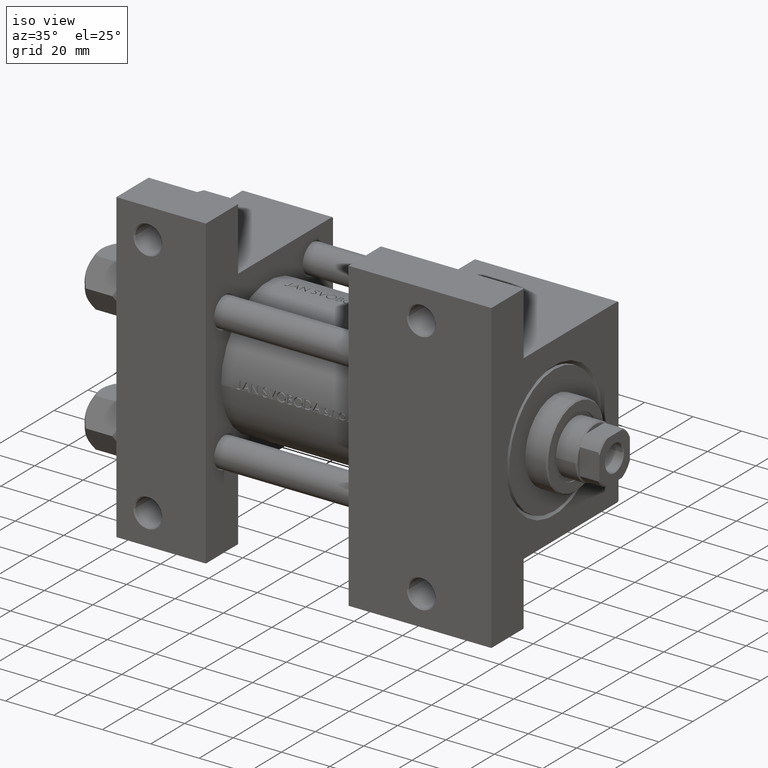
[diagram: clean part render]
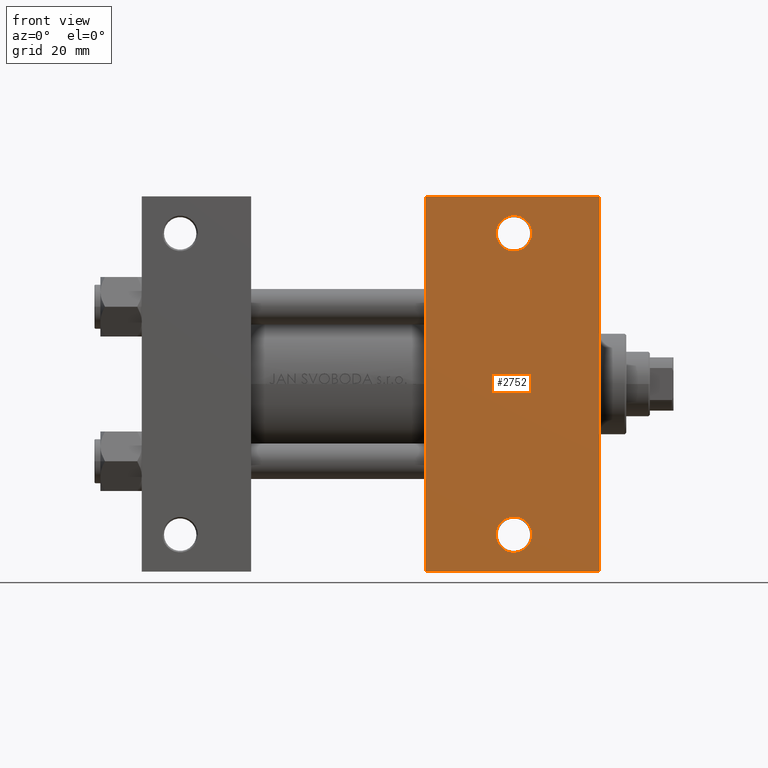
[diagram: tour spotlight — one face highlighted and labeled with its STEP entity id]
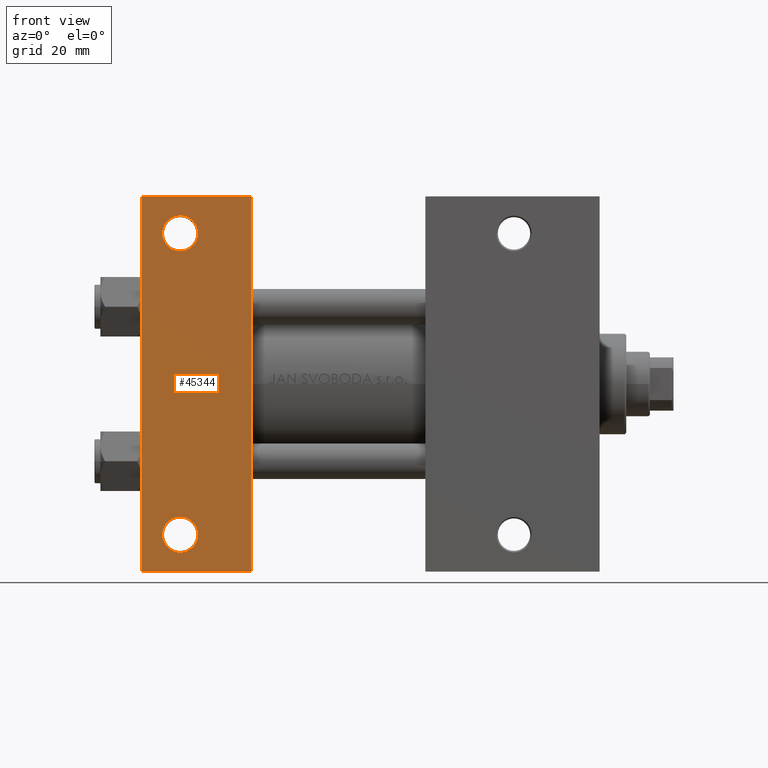
[diagram: tour spotlight — one face highlighted and labeled with its STEP entity id]
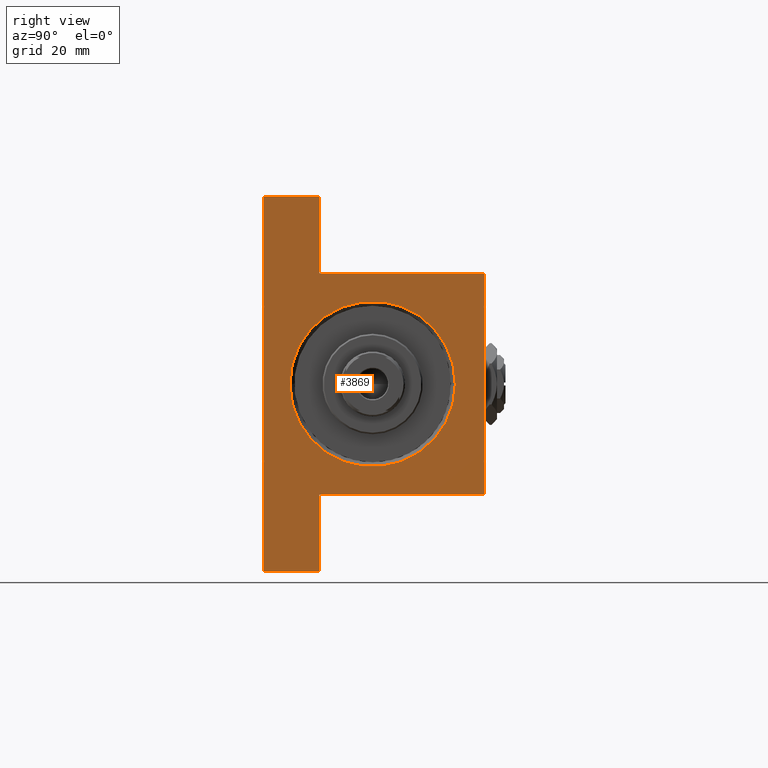
[diagram: tour spotlight — one face highlighted and labeled with its STEP entity id]
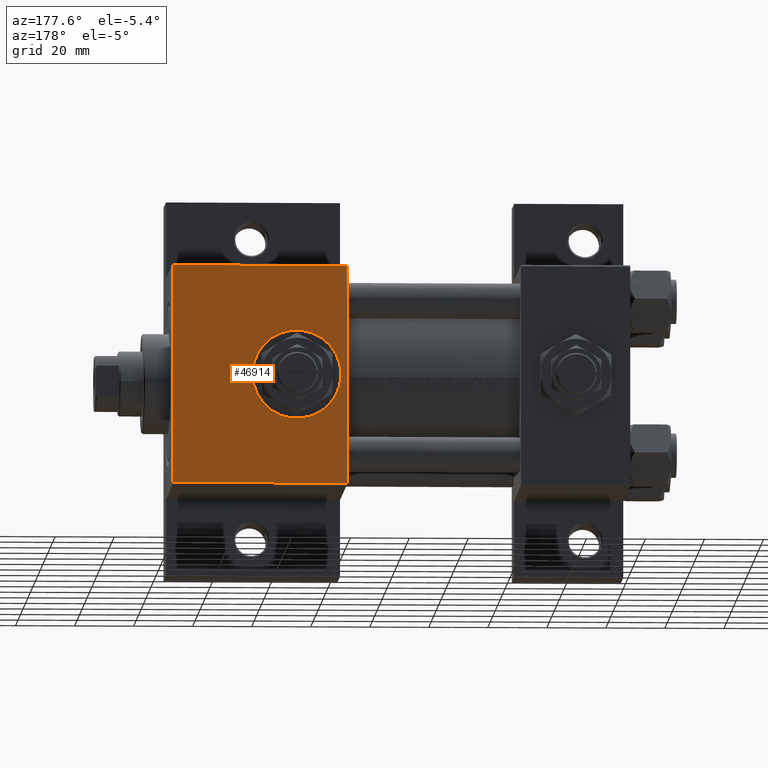
[diagram: tour spotlight — one face highlighted and labeled with its STEP entity id]
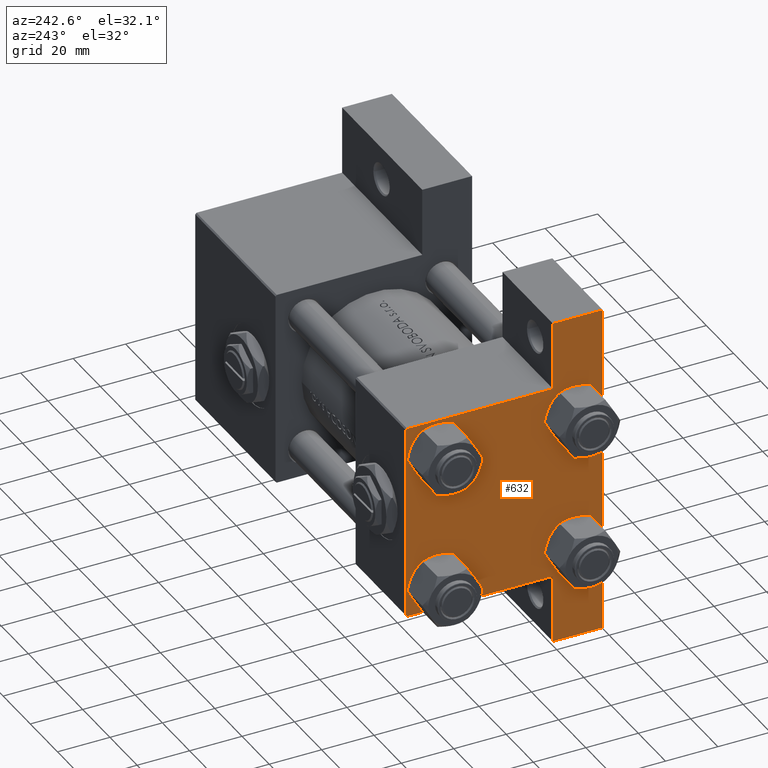
[diagram: tour spotlight — one face highlighted and labeled with its STEP entity id]
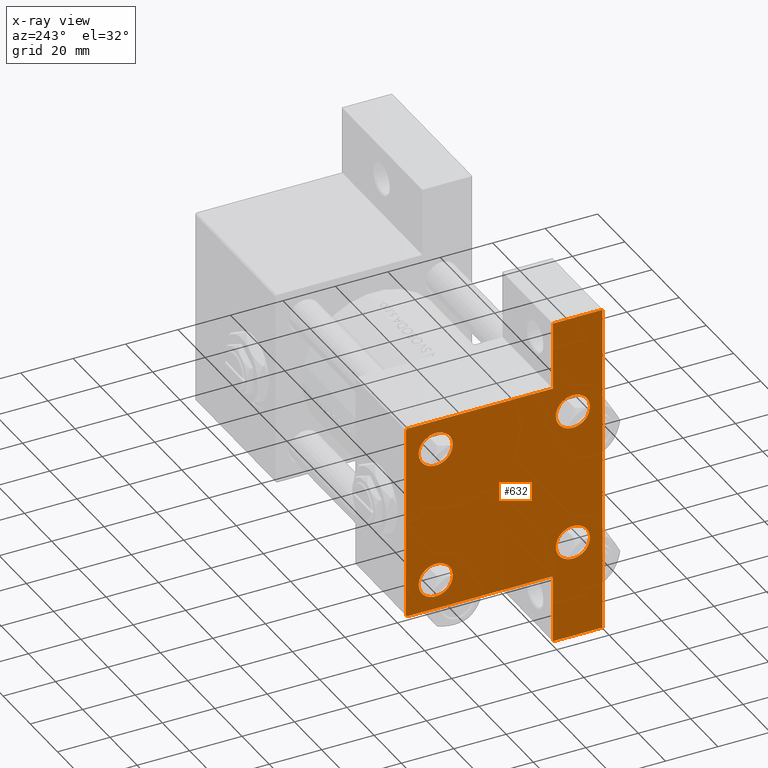
[diagram: x-ray of the same camera — body ghosted, this tour face saturated]
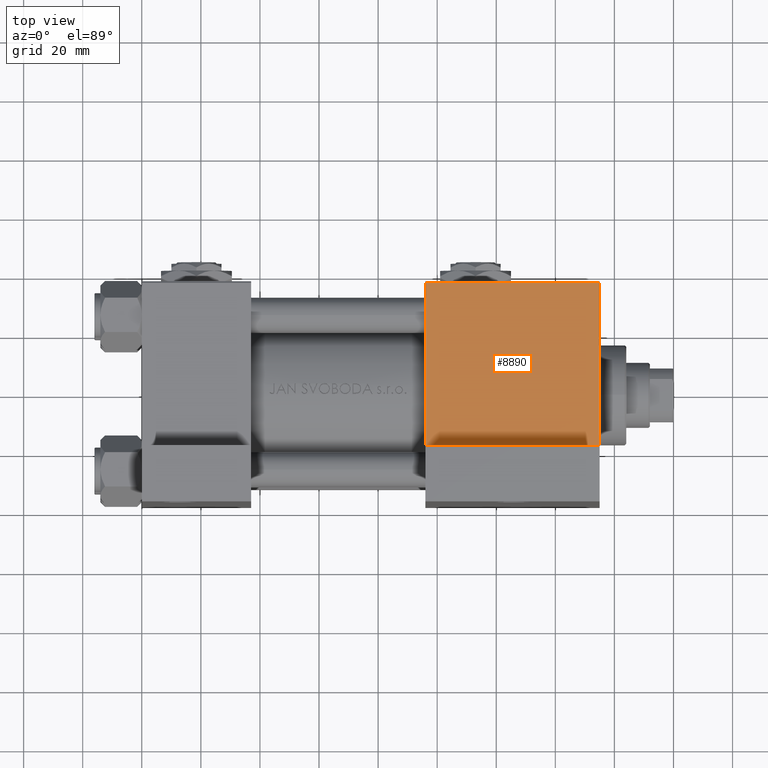
[diagram: tour spotlight — one face highlighted and labeled with its STEP entity id]
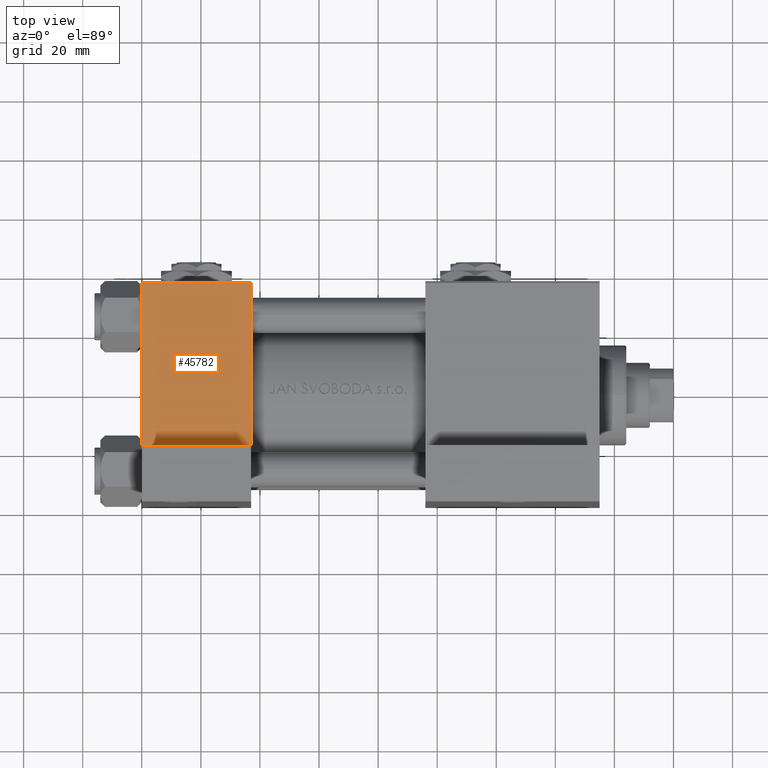
[diagram: tour spotlight — one face highlighted and labeled with its STEP entity id]
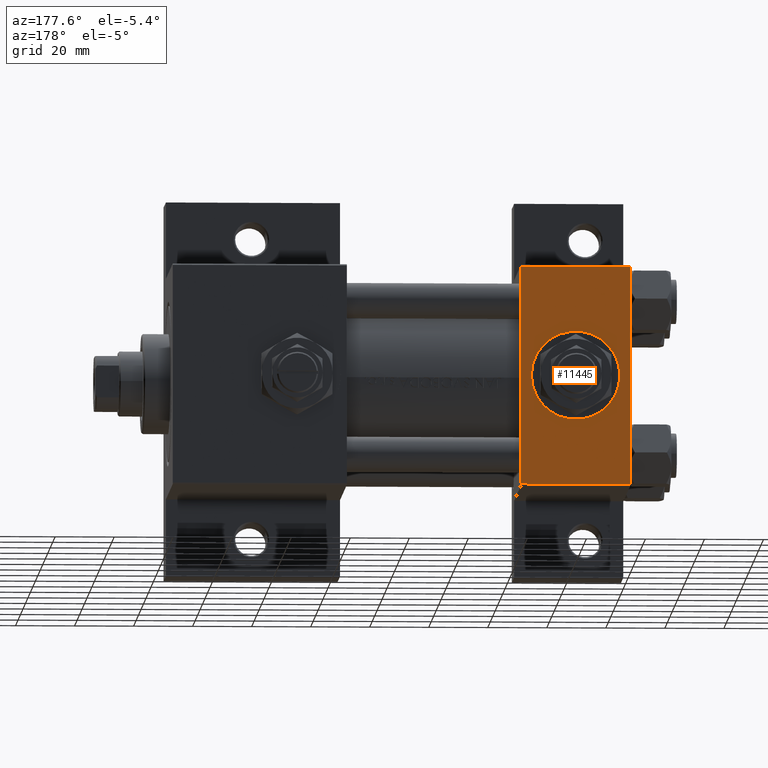
[diagram: tour spotlight — one face highlighted and labeled with its STEP entity id]
A machine part: a face-by-face anatomy tour. The part has 1172 B-rep faces; the first image is the clean iso view, then the 8 largest visible faces are spotlighted one at a time (largest first), each with its STEP entity span.

Face 1 — front view, entity #2752. In plain terms, the highlighted planar face has unit normal (0, -1, 0).
Definition (entity closure, byte-faithful):
#818 = ORIENTED_EDGE ( 'NONE', *, *, #30708, .T. ) ;
#1013 = CIRCLE ( 'NONE', #16833, 5.999499999999962974 ) ;
#1709 = PLANE ( 'NONE',  #37448 ) ;
#2261 = ORIENTED_EDGE ( 'NONE', *, *, #8503, .F. ) ;
#2472 = CARTESIAN_POINT ( 'NONE',  ( 131.9994999999999266, 51.00000000000000000, -37.50000000000000000 ) ) ;
#2752 = ADVANCED_FACE ( 'NONE', ( #9618, #21055, #35681 ), #1709, .T. ) ;
#2783 = DIRECTION ( 'NONE',  ( 1.000000000000000000, 0.000000000000000000, 0.000000000000000000 ) ) ;
#5666 = DIRECTION ( 'NONE',  ( -1.000000000000000000, 0.000000000000000000, -0.000000000000000000 ) ) ;
#6426 = LINE ( 'NONE', #17591, #35598 ) ;
#6979 = ORIENTED_EDGE ( 'NONE', *, *, #40534, .T. ) ;
#8198 = ORIENTED_EDGE ( 'NONE', *, *, #22132, .T. ) ;
#8375 = EDGE_CURVE ( 'NONE', #15174, #36140, #1013, .T. ) ;
#8503 = EDGE_CURVE ( 'NONE', #10981, #44697, #26613, .T. ) ;
#8769 = ORIENTED_EDGE ( 'NONE', *, *, #35997, .T. ) ;
#9618 = FACE_BOUND ( 'NONE', #11265, .T. ) ;
#9860 = DIRECTION ( 'NONE',  ( 0.000000000000000000, 0.000000000000000000, -1.000000000000000000 ) ) ;
#10091 = CARTESIAN_POINT ( 'NONE',  ( 131.9994999999999550, -51.00000000000000711, -37.50000000000000000 ) ) ;
#10172 = CIRCLE ( 'NONE', #38685, 5.999499999999962974 ) ;
#10981 = VERTEX_POINT ( 'NONE', #25112 ) ;
#11072 = EDGE_CURVE ( 'NONE', #10981, #20093, #30312, .T. ) ;
#11265 = EDGE_LOOP ( 'NONE', ( #22776, #818 ) ) ;
#11538 = CARTESIAN_POINT ( 'NONE',  ( 126.0000000000000000, -51.00000000000000711, -37.50000000000000000 ) ) ;
#12256 = CARTESIAN_POINT ( 'NONE',  ( 125.9999999999999716, 51.00000000000000000, -37.50000000000000000 ) ) ;
#14013 = AXIS2_PLACEMENT_3D ( 'NONE', #36267, #17416, #32056 ) ;
#14907 = CARTESIAN_POINT ( 'NONE',  ( 95.99999999999998579, -63.50000000000000000, -37.50000000000000000 ) ) ;
#15174 = VERTEX_POINT ( 'NONE', #17948 ) ;
#16833 = AXIS2_PLACEMENT_3D ( 'NONE', #12256, #42261, #23443 ) ;
#17249 = EDGE_LOOP ( 'NONE', ( #2261, #32450, #34007, #8769 ) ) ;
#17416 = DIRECTION ( 'NONE',  ( -0.000000000000000000, -0.000000000000000000, 1.000000000000000000 ) ) ;
#17591 = CARTESIAN_POINT ( 'NONE',  ( 155.0000000000000000, 37.50000000000000000, -37.50000000000000000 ) ) ;
#17948 = CARTESIAN_POINT ( 'NONE',  ( 120.0005000000000166, 51.00000000000000000, -37.50000000000000000 ) ) ;
#18086 = CARTESIAN_POINT ( 'NONE',  ( 120.0005000000000308, -51.00000000000000711, -37.50000000000000000 ) ) ;
#18427 = DIRECTION ( 'NONE',  ( 0.000000000000000000, -1.000000000000000000, 0.000000000000000000 ) ) ;
#19257 = DIRECTION ( 'NONE',  ( -1.000000000000000000, 0.000000000000000000, 0.000000000000000000 ) ) ;
#20093 = VERTEX_POINT ( 'NONE', #22055 ) ;
#21055 = FACE_BOUND ( 'NONE', #47031, .T. ) ;
#21081 = DIRECTION ( 'NONE',  ( 0.000000000000000000, -1.000000000000000000, 0.000000000000000000 ) ) ;
#22055 = CARTESIAN_POINT ( 'NONE',  ( 155.0000000000000000, 63.50000000000000000, -37.50000000000000000 ) ) ;
#22132 = EDGE_CURVE ( 'NONE', #24328, #23371, #29861, .T. ) ;
#22776 = ORIENTED_EDGE ( 'NONE', *, *, #8375, .T. ) ;
#23371 = VERTEX_POINT ( 'NONE', #18086 ) ;
#23443 = DIRECTION ( 'NONE',  ( -1.000000000000000000, 0.000000000000000000, 0.000000000000000000 ) ) ;
#24328 = VERTEX_POINT ( 'NONE', #10091 ) ;
#25112 = CARTESIAN_POINT ( 'NONE',  ( 96.00000000000000000, 63.50000000000000000, -37.50000000000000000 ) ) ;
#25949 = DIRECTION ( 'NONE',  ( -0.000000000000000000, -0.000000000000000000, 1.000000000000000000 ) ) ;
#26613 = LINE ( 'NONE', #40982, #48505 ) ;
#29242 = VERTEX_POINT ( 'NONE', #32152 ) ;
#29861 = CIRCLE ( 'NONE', #14013, 5.999499999999962974 ) ;
#30044 = CIRCLE ( 'NONE', #41879, 5.999499999999962974 ) ;
#30312 = LINE ( 'NONE', #44923, #48573 ) ;
#30559 = DIRECTION ( 'NONE',  ( -1.000000000000000000, 0.000000000000000000, 0.000000000000000000 ) ) ;
#30683 = VECTOR ( 'NONE', #36335, 1000.000000000000000 ) ;
#30708 = EDGE_CURVE ( 'NONE', #36140, #15174, #10172, .T. ) ;
#32056 = DIRECTION ( 'NONE',  ( -1.000000000000000000, 0.000000000000000000, 0.000000000000000000 ) ) ;
#32152 = CARTESIAN_POINT ( 'NONE',  ( 154.9999999999999716, -63.50000000000002842, -37.50000000000000000 ) ) ;
#32450 = ORIENTED_EDGE ( 'NONE', *, *, #11072, .T. ) ;
#34007 = ORIENTED_EDGE ( 'NONE', *, *, #41002, .T. ) ;
#35598 = VECTOR ( 'NONE', #21081, 1000.000000000000000 ) ;
#35681 = FACE_OUTER_BOUND ( 'NONE', #17249, .T. ) ;
#35997 = EDGE_CURVE ( 'NONE', #29242, #44697, #44002, .T. ) ;
#36140 = VERTEX_POINT ( 'NONE', #2472 ) ;
#36267 = CARTESIAN_POINT ( 'NONE',  ( 126.0000000000000000, -51.00000000000000711, -37.50000000000000000 ) ) ;
#36335 = DIRECTION ( 'NONE',  ( -1.000000000000000000, 4.704334850106596780E-16, -0.000000000000000000 ) ) ;
#37448 = AXIS2_PLACEMENT_3D ( 'NONE', #47085, #9860, #5666 ) ;
#38685 = AXIS2_PLACEMENT_3D ( 'NONE', #42908, #38712, #30559 ) ;
#38712 = DIRECTION ( 'NONE',  ( -0.000000000000000000, -0.000000000000000000, 1.000000000000000000 ) ) ;
#40527 = CARTESIAN_POINT ( 'NONE',  ( 95.99999999999998579, -63.50000000000000000, -37.50000000000000000 ) ) ;
#40534 = EDGE_CURVE ( 'NONE', #23371, #24328, #30044, .T. ) ;
#40982 = CARTESIAN_POINT ( 'NONE',  ( 96.00000000000000000, 37.50000000000000000, -37.50000000000000000 ) ) ;
#41002 = EDGE_CURVE ( 'NONE', #20093, #29242, #6426, .T. ) ;
#41879 = AXIS2_PLACEMENT_3D ( 'NONE', #11538, #25949, #19257 ) ;
#42261 = DIRECTION ( 'NONE',  ( -0.000000000000000000, -0.000000000000000000, 1.000000000000000000 ) ) ;
#42908 = CARTESIAN_POINT ( 'NONE',  ( 125.9999999999999716, 51.00000000000000000, -37.50000000000000000 ) ) ;
#44002 = LINE ( 'NONE', #40527, #30683 ) ;
#44697 = VERTEX_POINT ( 'NONE', #14907 ) ;
#44923 = CARTESIAN_POINT ( 'NONE',  ( 96.00000000000000000, 63.50000000000000000, -37.50000000000000000 ) ) ;
#47031 = EDGE_LOOP ( 'NONE', ( #6979, #8198 ) ) ;
#47085 = CARTESIAN_POINT ( 'NONE',  ( 155.0000000000000000, 37.50000000000000000, -37.50000000000000000 ) ) ;
#48505 = VECTOR ( 'NONE', #18427, 1000.000000000000000 ) ;
#48573 = VECTOR ( 'NONE', #2783, 1000.000000000000000 ) ;

Face 2 — front view, entity #45344. In plain terms, the highlighted planar face has unit normal (0, -1, -0).
Definition (entity closure, byte-faithful):
#2777 = FACE_OUTER_BOUND ( 'NONE', #48219, .T. ) ;
#2802 = ORIENTED_EDGE ( 'NONE', *, *, #35170, .T. ) ;
#3554 = VERTEX_POINT ( 'NONE', #30809 ) ;
#3635 = CARTESIAN_POINT ( 'NONE',  ( 37.00000000000000000, -63.50000000000000000, -37.49999999999999289 ) ) ;
#4525 = VERTEX_POINT ( 'NONE', #41949 ) ;
#5533 = DIRECTION ( 'NONE',  ( 0.000000000000000000, 1.000000000000000000, 0.000000000000000000 ) ) ;
#5655 = VERTEX_POINT ( 'NONE', #5928 ) ;
#5928 = CARTESIAN_POINT ( 'NONE',  ( 7.000500000000061895, 50.99999999999999289, -37.50000000000000000 ) ) ;
#6754 = DIRECTION ( 'NONE',  ( -0.000000000000000000, -9.251858538542972814E-17, 1.000000000000000000 ) ) ;
#10204 = DIRECTION ( 'NONE',  ( 0.000000000000000000, 1.000000000000000000, 0.000000000000000000 ) ) ;
#10852 = VERTEX_POINT ( 'NONE', #15719 ) ;
#11817 = VECTOR ( 'NONE', #36112, 1000.000000000000000 ) ;
#11846 = CARTESIAN_POINT ( 'NONE',  ( 12.99999999999999822, -51.00000000000001421, -37.50000000000000711 ) ) ;
#13463 = AXIS2_PLACEMENT_3D ( 'NONE', #44188, #6754, #10204 ) ;
#13962 = EDGE_CURVE ( 'NONE', #3554, #46959, #48677, .T. ) ;
#14176 = FACE_BOUND ( 'NONE', #31418, .T. ) ;
#15167 = DIRECTION ( 'NONE',  ( 0.000000000000000000, 1.000000000000000000, 9.251858538542972814E-17 ) ) ;
#15425 = AXIS2_PLACEMENT_3D ( 'NONE', #35574, #31606, #46232 ) ;
#15719 = CARTESIAN_POINT ( 'NONE',  ( 3.977209754999747208E-16, -63.50000000000000000, -37.49999999999999289 ) ) ;
#17429 = ORIENTED_EDGE ( 'NONE', *, *, #21212, .T. ) ;
#17917 = VECTOR ( 'NONE', #23299, 1000.000000000000000 ) ;
#18463 = EDGE_CURVE ( 'NONE', #45990, #10852, #31248, .T. ) ;
#19403 = EDGE_CURVE ( 'NONE', #26186, #10852, #23766, .T. ) ;
#19806 = DIRECTION ( 'NONE',  ( 0.000000000000000000, -1.000000000000000000, -9.251858538542972814E-17 ) ) ;
#19914 = CIRCLE ( 'NONE', #42098, 5.999499999999935440 ) ;
#20294 = CARTESIAN_POINT ( 'NONE',  ( 0.000000000000000000, 37.49999999999999289, -37.50000000000000000 ) ) ;
#21025 = VECTOR ( 'NONE', #27509, 1000.000000000000000 ) ;
#21212 = EDGE_CURVE ( 'NONE', #26186, #4525, #34936, .T. ) ;
#21218 = CARTESIAN_POINT ( 'NONE',  ( 37.00000000000000000, 37.49999999999999289, -37.50000000000000000 ) ) ;
#21399 = DIRECTION ( 'NONE',  ( -0.000000000000000000, -9.251858538542972814E-17, 1.000000000000000000 ) ) ;
#23081 = CARTESIAN_POINT ( 'NONE',  ( 3.977209754999747208E-16, -63.50000000000000000, -37.49999999999999289 ) ) ;
#23299 = DIRECTION ( 'NONE',  ( 1.000000000000000000, 0.000000000000000000, 0.000000000000000000 ) ) ;
#23766 = LINE ( 'NONE', #20294, #26572 ) ;
#24517 = AXIS2_PLACEMENT_3D ( 'NONE', #26335, #26820, #15167 ) ;
#25113 = CARTESIAN_POINT ( 'NONE',  ( 12.99999999999999822, 50.99999999999999289, -37.50000000000000000 ) ) ;
#26186 = VERTEX_POINT ( 'NONE', #33265 ) ;
#26335 = CARTESIAN_POINT ( 'NONE',  ( 37.00000000000000000, 37.49999999999999289, -37.50000000000000000 ) ) ;
#26572 = VECTOR ( 'NONE', #19806, 1000.000000000000000 ) ;
#26820 = DIRECTION ( 'NONE',  ( 0.000000000000000000, 9.251858538542972814E-17, -1.000000000000000000 ) ) ;
#27509 = DIRECTION ( 'NONE',  ( -1.000000000000000000, -0.000000000000000000, -0.000000000000000000 ) ) ;
#28051 = EDGE_CURVE ( 'NONE', #4525, #45990, #35367, .T. ) ;
#28306 = ORIENTED_EDGE ( 'NONE', *, *, #19403, .F. ) ;
#28326 = ORIENTED_EDGE ( 'NONE', *, *, #13962, .T. ) ;
#29314 = PLANE ( 'NONE',  #24517 ) ;
#30712 = DIRECTION ( 'NONE',  ( -0.000000000000000000, -9.251858538542972814E-17, 1.000000000000000000 ) ) ;
#30809 = CARTESIAN_POINT ( 'NONE',  ( 18.99949999999996209, -51.00000000000001421, -37.50000000000000711 ) ) ;
#31248 = LINE ( 'NONE', #23081, #21025 ) ;
#31418 = EDGE_LOOP ( 'NONE', ( #39933, #28326 ) ) ;
#31584 = AXIS2_PLACEMENT_3D ( 'NONE', #11846, #30712, #45822 ) ;
#31606 = DIRECTION ( 'NONE',  ( -0.000000000000000000, -9.251858538542972814E-17, 1.000000000000000000 ) ) ;
#31637 = VERTEX_POINT ( 'NONE', #47632 ) ;
#31712 = CARTESIAN_POINT ( 'NONE',  ( 1.595073532467135441E-14, 63.50000000000000000, -37.50000000000002132 ) ) ;
#33265 = CARTESIAN_POINT ( 'NONE',  ( 1.595073532467135441E-14, 63.50000000000000000, -37.50000000000002132 ) ) ;
#34936 = LINE ( 'NONE', #31712, #17917 ) ;
#35170 = EDGE_CURVE ( 'NONE', #5655, #31637, #19914, .T. ) ;
#35367 = LINE ( 'NONE', #21218, #11817 ) ;
#35530 = ORIENTED_EDGE ( 'NONE', *, *, #28051, .T. ) ;
#35574 = CARTESIAN_POINT ( 'NONE',  ( 12.99999999999999822, -51.00000000000001421, -37.50000000000000711 ) ) ;
#36112 = DIRECTION ( 'NONE',  ( 0.000000000000000000, -1.000000000000000000, -9.251858538542972814E-17 ) ) ;
#37118 = CARTESIAN_POINT ( 'NONE',  ( 7.000500000000034362, -51.00000000000001421, -37.50000000000000711 ) ) ;
#39933 = ORIENTED_EDGE ( 'NONE', *, *, #43755, .T. ) ;
#40215 = FACE_BOUND ( 'NONE', #45682, .T. ) ;
#41431 = ORIENTED_EDGE ( 'NONE', *, *, #18463, .T. ) ;
#41874 = CIRCLE ( 'NONE', #31584, 5.999499999999962974 ) ;
#41949 = CARTESIAN_POINT ( 'NONE',  ( 37.00000000000001421, 63.50000000000000000, -37.50000000000002132 ) ) ;
#42098 = AXIS2_PLACEMENT_3D ( 'NONE', #25113, #21399, #5533 ) ;
#43542 = CIRCLE ( 'NONE', #13463, 5.999499999999935440 ) ;
#43755 = EDGE_CURVE ( 'NONE', #46959, #3554, #41874, .T. ) ;
#44188 = CARTESIAN_POINT ( 'NONE',  ( 12.99999999999999822, 50.99999999999999289, -37.50000000000000000 ) ) ;
#44343 = ORIENTED_EDGE ( 'NONE', *, *, #46139, .T. ) ;
#45344 = ADVANCED_FACE ( 'NONE', ( #40215, #14176, #2777 ), #29314, .T. ) ;
#45682 = EDGE_LOOP ( 'NONE', ( #2802, #44343 ) ) ;
#45822 = DIRECTION ( 'NONE',  ( 0.000000000000000000, 1.000000000000000000, 0.000000000000000000 ) ) ;
#45990 = VERTEX_POINT ( 'NONE', #3635 ) ;
#46139 = EDGE_CURVE ( 'NONE', #31637, #5655, #43542, .T. ) ;
#46232 = DIRECTION ( 'NONE',  ( 0.000000000000000000, 1.000000000000000000, 0.000000000000000000 ) ) ;
#46959 = VERTEX_POINT ( 'NONE', #37118 ) ;
#47632 = CARTESIAN_POINT ( 'NONE',  ( 18.99949999999993366, 50.99999999999999289, -37.50000000000000000 ) ) ;
#48219 = EDGE_LOOP ( 'NONE', ( #28306, #17429, #35530, #41431 ) ) ;
#48677 = CIRCLE ( 'NONE', #15425, 5.999499999999962974 ) ;

Face 3 — right view, entity #3869. In plain terms, the highlighted planar face has unit normal (-1, 0, 0).
Definition (entity closure, byte-faithful):
#209 = ORIENTED_EDGE ( 'NONE', *, *, #41002, .F. ) ;
#253 = LINE ( 'NONE', #6949, #9401 ) ;
#1236 = DIRECTION ( 'NONE',  ( -0.000000000000000000, -0.7071067811865671127, -0.7071067811865279218 ) ) ;
#1252 = DIRECTION ( 'NONE',  ( -1.067522139062650671E-15, -1.000000000000000000, 0.000000000000000000 ) ) ;
#2292 = LINE ( 'NONE', #32553, #5493 ) ;
#2423 = CARTESIAN_POINT ( 'NONE',  ( 155.0000000000000000, -37.50000000000000000, 37.00000000000000711 ) ) ;
#2565 = VECTOR ( 'NONE', #1236, 1000.000000000000000 ) ;
#3084 = DIRECTION ( 'NONE',  ( 0.000000000000000000, 0.000000000000000000, 1.000000000000000000 ) ) ;
#3314 = VERTEX_POINT ( 'NONE', #31835 ) ;
#3587 = ORIENTED_EDGE ( 'NONE', *, *, #42255, .T. ) ;
#3869 = ADVANCED_FACE ( 'NONE', ( #14025, #20504 ), #35631, .F. ) ;
#3967 = DIRECTION ( 'NONE',  ( 0.000000000000000000, -0.7071067811865474617, 0.7071067811865474617 ) ) ;
#4740 = DIRECTION ( 'NONE',  ( 0.000000000000000000, 0.000000000000000000, -1.000000000000000000 ) ) ;
#4835 = ORIENTED_EDGE ( 'NONE', *, *, #6315, .T. ) ;
#5060 = DIRECTION ( 'NONE',  ( -0.000000000000000000, -1.000000000000000000, -0.000000000000000000 ) ) ;
#5211 = VERTEX_POINT ( 'NONE', #28423 ) ;
#5423 = VECTOR ( 'NONE', #35577, 1000.000000000000000 ) ;
#5493 = VECTOR ( 'NONE', #16684, 1000.000000000000000 ) ;
#6298 = LINE ( 'NONE', #40259, #5423 ) ;
#6315 = EDGE_CURVE ( 'NONE', #25036, #43585, #8775, .T. ) ;
#6426 = LINE ( 'NONE', #17591, #35598 ) ;
#6949 = CARTESIAN_POINT ( 'NONE',  ( 155.0000000000000000, 37.00000000000000000, 37.49999999999999289 ) ) ;
#7269 = CARTESIAN_POINT ( 'NONE',  ( 155.0000000000000000, -37.50000000000000711, -18.50000000000000355 ) ) ;
#8420 = LINE ( 'NONE', #35210, #2565 ) ;
#8530 = AXIS2_PLACEMENT_3D ( 'NONE', #44495, #40777, #3084 ) ;
#8775 = LINE ( 'NONE', #35825, #32817 ) ;
#8863 = EDGE_CURVE ( 'NONE', #38090, #20218, #8420, .T. ) ;
#9401 = VECTOR ( 'NONE', #3967, 1000.000000000000114 ) ;
#9782 = EDGE_LOOP ( 'NONE', ( #43989, #23883, #3587, #17001, #17031, #4835, #32363, #209, #22244, #17446 ) ) ;
#10042 = DIRECTION ( 'NONE',  ( -1.000000000000000000, -0.000000000000000000, 0.000000000000000000 ) ) ;
#10493 = CARTESIAN_POINT ( 'NONE',  ( 155.0000000000000000, 63.50000000000000000, -18.50000000000000000 ) ) ;
#11606 = AXIS2_PLACEMENT_3D ( 'NONE', #37057, #18208, #20971 ) ;
#12180 = EDGE_CURVE ( 'NONE', #43585, #29242, #46150, .T. ) ;
#12571 = CARTESIAN_POINT ( 'NONE',  ( 155.0000000000000000, 37.50000000000000000, 37.49999999999999289 ) ) ;
#13777 = VECTOR ( 'NONE', #33083, 1000.000000000000000 ) ;
#14025 = FACE_BOUND ( 'NONE', #15717, .T. ) ;
#14061 = CIRCLE ( 'NONE', #8530, 27.99999999999999645 ) ;
#15717 = EDGE_LOOP ( 'NONE', ( #46288, #44636 ) ) ;
#15964 = EDGE_CURVE ( 'NONE', #19680, #20093, #22178, .T. ) ;
#16028 = VERTEX_POINT ( 'NONE', #40765 ) ;
#16310 = DIRECTION ( 'NONE',  ( 0.000000000000000000, 0.000000000000000000, -1.000000000000000000 ) ) ;
#16684 = DIRECTION ( 'NONE',  ( 0.000000000000000000, -9.251858538542972814E-17, -1.000000000000000000 ) ) ;
#17001 = ORIENTED_EDGE ( 'NONE', *, *, #8863, .T. ) ;
#17031 = ORIENTED_EDGE ( 'NONE', *, *, #45201, .T. ) ;
#17041 = VERTEX_POINT ( 'NONE', #33539 ) ;
#17446 = ORIENTED_EDGE ( 'NONE', *, *, #46489, .T. ) ;
#17591 = CARTESIAN_POINT ( 'NONE',  ( 155.0000000000000000, 37.50000000000000000, -37.50000000000000000 ) ) ;
#18208 = DIRECTION ( 'NONE',  ( -1.000000000000000000, -0.000000000000000000, 0.000000000000000000 ) ) ;
#19406 = CARTESIAN_POINT ( 'NONE',  ( 154.9999999999999716, -63.50000000000002842, -18.50000000000000000 ) ) ;
#19680 = VERTEX_POINT ( 'NONE', #45774 ) ;
#19796 = LINE ( 'NONE', #12571, #43499 ) ;
#20093 = VERTEX_POINT ( 'NONE', #22055 ) ;
#20218 = VERTEX_POINT ( 'NONE', #2423 ) ;
#20504 = FACE_OUTER_BOUND ( 'NONE', #9782, .T. ) ;
#20971 = DIRECTION ( 'NONE',  ( 0.000000000000000000, 0.000000000000000000, 1.000000000000000000 ) ) ;
#21081 = DIRECTION ( 'NONE',  ( 0.000000000000000000, -1.000000000000000000, 0.000000000000000000 ) ) ;
#21664 = AXIS2_PLACEMENT_3D ( 'NONE', #40074, #10042, #43040 ) ;
#21804 = CARTESIAN_POINT ( 'NONE',  ( 155.0000000000000000, 0.000000000000000000, -28.49999999999999645 ) ) ;
#22055 = CARTESIAN_POINT ( 'NONE',  ( 155.0000000000000000, 63.50000000000000000, -37.50000000000000000 ) ) ;
#22178 = LINE ( 'NONE', #10493, #13777 ) ;
#22244 = ORIENTED_EDGE ( 'NONE', *, *, #15964, .F. ) ;
#22733 = EDGE_CURVE ( 'NONE', #16028, #33433, #32998, .T. ) ;
#23883 = ORIENTED_EDGE ( 'NONE', *, *, #31753, .T. ) ;
#25036 = VERTEX_POINT ( 'NONE', #7269 ) ;
#27725 = VECTOR ( 'NONE', #1252, 1000.000000000000000 ) ;
#28023 = CARTESIAN_POINT ( 'NONE',  ( 155.0000000000000000, 63.50000000000000000, -18.50000000000000000 ) ) ;
#28423 = CARTESIAN_POINT ( 'NONE',  ( 154.9999999999999716, 37.50000000000000711, -18.50000000000000000 ) ) ;
#29242 = VERTEX_POINT ( 'NONE', #32152 ) ;
#31753 = EDGE_CURVE ( 'NONE', #17041, #3314, #253, .T. ) ;
#31835 = CARTESIAN_POINT ( 'NONE',  ( 155.0000000000000000, 37.00000000000000000, 37.49999999999999289 ) ) ;
#32152 = CARTESIAN_POINT ( 'NONE',  ( 154.9999999999999716, -63.50000000000002842, -37.50000000000000000 ) ) ;
#32363 = ORIENTED_EDGE ( 'NONE', *, *, #12180, .T. ) ;
#32553 = CARTESIAN_POINT ( 'NONE',  ( 155.0000000000000000, -37.50000000000000000, 37.49999999999997868 ) ) ;
#32817 = VECTOR ( 'NONE', #5060, 1000.000000000000000 ) ;
#32851 = EDGE_CURVE ( 'NONE', #17041, #5211, #19796, .T. ) ;
#32998 = CIRCLE ( 'NONE', #11606, 27.99999999999999645 ) ;
#33083 = DIRECTION ( 'NONE',  ( 0.000000000000000000, 0.000000000000000000, -1.000000000000000000 ) ) ;
#33433 = VERTEX_POINT ( 'NONE', #21804 ) ;
#33539 = CARTESIAN_POINT ( 'NONE',  ( 155.0000000000000000, 37.50000000000000000, 36.99999999999999289 ) ) ;
#35210 = CARTESIAN_POINT ( 'NONE',  ( 155.0000000000000000, -37.50000000000000000, 37.00000000000000711 ) ) ;
#35577 = DIRECTION ( 'NONE',  ( 0.000000000000000000, -1.000000000000000000, -1.850371707708594316E-16 ) ) ;
#35598 = VECTOR ( 'NONE', #21081, 1000.000000000000000 ) ;
#35631 = PLANE ( 'NONE',  #21664 ) ;
#35719 = LINE ( 'NONE', #28023, #27725 ) ;
#35825 = CARTESIAN_POINT ( 'NONE',  ( 154.9999999999999716, -63.50000000000002842, -18.50000000000000000 ) ) ;
#36676 = EDGE_CURVE ( 'NONE', #33433, #16028, #14061, .T. ) ;
#37057 = CARTESIAN_POINT ( 'NONE',  ( 155.0000000000000000, 0.000000000000000000, -0.5000000000000004441 ) ) ;
#38090 = VERTEX_POINT ( 'NONE', #42661 ) ;
#39672 = CARTESIAN_POINT ( 'NONE',  ( 154.9999999999999716, -63.50000000000002842, -18.50000000000000000 ) ) ;
#40074 = CARTESIAN_POINT ( 'NONE',  ( 155.0000000000000000, 0.000000000000000000, 0.000000000000000000 ) ) ;
#40259 = CARTESIAN_POINT ( 'NONE',  ( 155.0000000000000000, 37.50000000000000000, 37.49999999999999289 ) ) ;
#40765 = CARTESIAN_POINT ( 'NONE',  ( 155.0000000000000000, 3.429011037612588881E-15, 27.49999999999999645 ) ) ;
#40777 = DIRECTION ( 'NONE',  ( -1.000000000000000000, -0.000000000000000000, 0.000000000000000000 ) ) ;
#41002 = EDGE_CURVE ( 'NONE', #20093, #29242, #6426, .T. ) ;
#42255 = EDGE_CURVE ( 'NONE', #3314, #38090, #6298, .T. ) ;
#42661 = CARTESIAN_POINT ( 'NONE',  ( 155.0000000000000000, -37.00000000000000000, 37.49999999999997868 ) ) ;
#43040 = DIRECTION ( 'NONE',  ( 0.000000000000000000, 0.000000000000000000, 1.000000000000000000 ) ) ;
#43499 = VECTOR ( 'NONE', #16310, 1000.000000000000000 ) ;
#43585 = VERTEX_POINT ( 'NONE', #39672 ) ;
#43989 = ORIENTED_EDGE ( 'NONE', *, *, #32851, .F. ) ;
#44495 = CARTESIAN_POINT ( 'NONE',  ( 155.0000000000000000, 0.000000000000000000, -0.5000000000000004441 ) ) ;
#44636 = ORIENTED_EDGE ( 'NONE', *, *, #22733, .T. ) ;
#45201 = EDGE_CURVE ( 'NONE', #20218, #25036, #2292, .T. ) ;
#45774 = CARTESIAN_POINT ( 'NONE',  ( 155.0000000000000000, 63.50000000000000000, -18.50000000000000000 ) ) ;
#46150 = LINE ( 'NONE', #19406, #48608 ) ;
#46288 = ORIENTED_EDGE ( 'NONE', *, *, #36676, .T. ) ;
#46489 = EDGE_CURVE ( 'NONE', #19680, #5211, #35719, .T. ) ;
#48608 = VECTOR ( 'NONE', #4740, 1000.000000000000000 ) ;

Face 4 — auxiliary view, entity #46914. In plain terms, the highlighted planar face has unit normal (0, -1, -0).
Definition (entity closure, byte-faithful):
#261 = CARTESIAN_POINT ( 'NONE',  ( 113.0000000000000000, -6.938893903907226011E-15, 37.49999999999998579 ) ) ;
#278 = EDGE_CURVE ( 'NONE', #7484, #33163, #38934, .T. ) ;
#496 = CARTESIAN_POINT ( 'NONE',  ( 96.00000000000000000, 37.00000000000000000, 37.49999999999999289 ) ) ;
#587 = CARTESIAN_POINT ( 'NONE',  ( 155.0000000000000000, 37.50000000000000000, 37.49999999999999289 ) ) ;
#676 = AXIS2_PLACEMENT_3D ( 'NONE', #261, #48854, #4217 ) ;
#3146 = DIRECTION ( 'NONE',  ( 1.000000000000000000, 0.000000000000000000, 0.000000000000000000 ) ) ;
#3314 = VERTEX_POINT ( 'NONE', #31835 ) ;
#4217 = DIRECTION ( 'NONE',  ( 1.000000000000000000, 0.000000000000000000, 0.000000000000000000 ) ) ;
#4305 = DIRECTION ( 'NONE',  ( 0.000000000000000000, 1.000000000000000000, 1.850371707708594316E-16 ) ) ;
#5423 = VECTOR ( 'NONE', #35577, 1000.000000000000000 ) ;
#6298 = LINE ( 'NONE', #40259, #5423 ) ;
#7484 = VERTEX_POINT ( 'NONE', #16226 ) ;
#7633 = VERTEX_POINT ( 'NONE', #496 ) ;
#7694 = ORIENTED_EDGE ( 'NONE', *, *, #42255, .F. ) ;
#8083 = LINE ( 'NONE', #37117, #46201 ) ;
#8098 = DIRECTION ( 'NONE',  ( -1.000000000000000000, 0.000000000000000000, 0.000000000000000000 ) ) ;
#10429 = EDGE_CURVE ( 'NONE', #43389, #38090, #8083, .T. ) ;
#12549 = CIRCLE ( 'NONE', #676, 15.00000000000000000 ) ;
#14399 = CARTESIAN_POINT ( 'NONE',  ( 113.0000000000000000, -6.938893903907226011E-15, 37.49999999999998579 ) ) ;
#16202 = PLANE ( 'NONE',  #26955 ) ;
#16226 = CARTESIAN_POINT ( 'NONE',  ( 97.99999999999998579, -5.101923705186194844E-15, 37.49999999999998579 ) ) ;
#18479 = EDGE_LOOP ( 'NONE', ( #21954, #44151 ) ) ;
#18738 = ORIENTED_EDGE ( 'NONE', *, *, #10429, .T. ) ;
#19143 = CARTESIAN_POINT ( 'NONE',  ( 96.00000000000000000, 37.50000000000000000, 37.49999999999999289 ) ) ;
#21502 = ORIENTED_EDGE ( 'NONE', *, *, #27038, .T. ) ;
#21954 = ORIENTED_EDGE ( 'NONE', *, *, #29695, .F. ) ;
#22058 = VECTOR ( 'NONE', #41678, 1000.000000000000000 ) ;
#22506 = ORIENTED_EDGE ( 'NONE', *, *, #48843, .T. ) ;
#23105 = LINE ( 'NONE', #19143, #22058 ) ;
#25082 = EDGE_LOOP ( 'NONE', ( #7694, #22506, #21502, #18738 ) ) ;
#26955 = AXIS2_PLACEMENT_3D ( 'NONE', #587, #29693, #4305 ) ;
#27020 = VECTOR ( 'NONE', #8098, 1000.000000000000000 ) ;
#27038 = EDGE_CURVE ( 'NONE', #7633, #43389, #23105, .T. ) ;
#29296 = DIRECTION ( 'NONE',  ( 1.000000000000000000, 0.000000000000000000, 0.000000000000000000 ) ) ;
#29693 = DIRECTION ( 'NONE',  ( 0.000000000000000000, 1.850371707708594316E-16, -1.000000000000000000 ) ) ;
#29695 = EDGE_CURVE ( 'NONE', #33163, #7484, #12549, .T. ) ;
#31835 = CARTESIAN_POINT ( 'NONE',  ( 155.0000000000000000, 37.00000000000000000, 37.49999999999999289 ) ) ;
#31862 = CARTESIAN_POINT ( 'NONE',  ( 128.0000000000000000, -6.938893903907226011E-15, 37.49999999999998579 ) ) ;
#33163 = VERTEX_POINT ( 'NONE', #31862 ) ;
#35577 = DIRECTION ( 'NONE',  ( 0.000000000000000000, -1.000000000000000000, -1.850371707708594316E-16 ) ) ;
#37117 = CARTESIAN_POINT ( 'NONE',  ( 155.0000000000000000, -37.00000000000000000, 37.49999999999997868 ) ) ;
#38090 = VERTEX_POINT ( 'NONE', #42661 ) ;
#38262 = CARTESIAN_POINT ( 'NONE',  ( 96.00000000000000000, -37.00000000000000000, 37.49999999999997868 ) ) ;
#38934 = CIRCLE ( 'NONE', #47645, 15.00000000000000000 ) ;
#40259 = CARTESIAN_POINT ( 'NONE',  ( 155.0000000000000000, 37.50000000000000000, 37.49999999999999289 ) ) ;
#41335 = LINE ( 'NONE', #42300, #27020 ) ;
#41678 = DIRECTION ( 'NONE',  ( 0.000000000000000000, -1.000000000000000000, -1.850371707708594316E-16 ) ) ;
#42255 = EDGE_CURVE ( 'NONE', #3314, #38090, #6298, .T. ) ;
#42300 = CARTESIAN_POINT ( 'NONE',  ( 96.00000000000000000, 37.00000000000000000, 37.49999999999999289 ) ) ;
#42661 = CARTESIAN_POINT ( 'NONE',  ( 155.0000000000000000, -37.00000000000000000, 37.49999999999997868 ) ) ;
#42711 = FACE_OUTER_BOUND ( 'NONE', #25082, .T. ) ;
#43389 = VERTEX_POINT ( 'NONE', #38262 ) ;
#43913 = DIRECTION ( 'NONE',  ( 0.000000000000000000, 0.000000000000000000, 1.000000000000000000 ) ) ;
#44151 = ORIENTED_EDGE ( 'NONE', *, *, #278, .F. ) ;
#45959 = FACE_BOUND ( 'NONE', #18479, .T. ) ;
#46201 = VECTOR ( 'NONE', #3146, 1000.000000000000000 ) ;
#46914 = ADVANCED_FACE ( 'NONE', ( #45959, #42711 ), #16202, .F. ) ;
#47645 = AXIS2_PLACEMENT_3D ( 'NONE', #14399, #43913, #29296 ) ;
#48843 = EDGE_CURVE ( 'NONE', #3314, #7633, #41335, .T. ) ;
#48854 = DIRECTION ( 'NONE',  ( 0.000000000000000000, 0.000000000000000000, 1.000000000000000000 ) ) ;

Face 5 — auxiliary view, entity #632. An x-ray twin of the same camera follows (body ghosted, this face saturated) — the face is partly hidden behind the body. In plain terms, the highlighted planar face has unit normal (-1, 0, -0).
Definition (entity closure, byte-faithful):
#206 = CIRCLE ( 'NONE', #45320, 6.500000000000023093 ) ;
#293 = DIRECTION ( 'NONE',  ( 1.000000000000000000, -0.000000000000000000, 0.000000000000000000 ) ) ;
#448 = DIRECTION ( 'NONE',  ( 1.000000000000000000, -0.000000000000000000, 0.000000000000000000 ) ) ;
#478 = VECTOR ( 'NONE', #44611, 1000.000000000000000 ) ;
#608 = VERTEX_POINT ( 'NONE', #44349 ) ;
#632 = ADVANCED_FACE ( 'NONE', ( #10360, #18063, #25516, #21305, #32712 ), #22032, .T. ) ;
#1171 = CARTESIAN_POINT ( 'NONE',  ( 0.000000000000000000, 26.14999999999999858, -26.15000000000000213 ) ) ;
#1320 = CARTESIAN_POINT ( 'NONE',  ( 0.000000000000000000, -26.14999999999999147, -19.64999999999999503 ) ) ;
#1732 = CARTESIAN_POINT ( 'NONE',  ( 0.000000000000000000, -37.50000000000000711, 36.99999999999999289 ) ) ;
#1741 = DIRECTION ( 'NONE',  ( 0.000000000000000000, -1.734723475976806848E-16, -1.000000000000000000 ) ) ;
#1886 = LINE ( 'NONE', #31651, #14191 ) ;
#2343 = VECTOR ( 'NONE', #33716, 1000.000000000000000 ) ;
#2380 = LINE ( 'NONE', #29401, #44503 ) ;
#2985 = VERTEX_POINT ( 'NONE', #28416 ) ;
#3644 = ORIENTED_EDGE ( 'NONE', *, *, #48265, .T. ) ;
#3662 = ORIENTED_EDGE ( 'NONE', *, *, #7149, .F. ) ;
#3907 = ORIENTED_EDGE ( 'NONE', *, *, #46952, .T. ) ;
#3917 = CARTESIAN_POINT ( 'NONE',  ( 0.000000000000000000, -26.14999999999999147, 26.15000000000000924 ) ) ;
#3931 = AXIS2_PLACEMENT_3D ( 'NONE', #35133, #34403, #27208 ) ;
#4027 = EDGE_LOOP ( 'NONE', ( #31456, #21657 ) ) ;
#4645 = AXIS2_PLACEMENT_3D ( 'NONE', #1171, #448, #15578 ) ;
#5274 = LINE ( 'NONE', #5528, #13240 ) ;
#5450 = CARTESIAN_POINT ( 'NONE',  ( 1.595073532467135441E-14, 63.50000000000001421, 26.72167621838005047 ) ) ;
#5528 = CARTESIAN_POINT ( 'NONE',  ( 3.977209754999744250E-16, -63.49999999999998579, -18.50000000000000355 ) ) ;
#5912 = ORIENTED_EDGE ( 'NONE', *, *, #28151, .F. ) ;
#6290 = VERTEX_POINT ( 'NONE', #12745 ) ;
#6424 = ORIENTED_EDGE ( 'NONE', *, *, #19403, .T. ) ;
#6497 = VERTEX_POINT ( 'NONE', #23619 ) ;
#7060 = AXIS2_PLACEMENT_3D ( 'NONE', #23754, #42821, #35648 ) ;
#7149 = EDGE_CURVE ( 'NONE', #25278, #10852, #2380, .T. ) ;
#7485 = CARTESIAN_POINT ( 'NONE',  ( 0.000000000000000000, -26.14999999999999147, -26.15000000000000924 ) ) ;
#7908 = LINE ( 'NONE', #41380, #478 ) ;
#7912 = EDGE_LOOP ( 'NONE', ( #40842, #10798, #30936, #3907, #15592, #5912, #28360, #6424, #3662, #27737 ) ) ;
#8322 = VERTEX_POINT ( 'NONE', #46972 ) ;
#8595 = CIRCLE ( 'NONE', #45033, 6.500000000000023093 ) ;
#8645 = EDGE_CURVE ( 'NONE', #41662, #37378, #206, .T. ) ;
#9650 = LINE ( 'NONE', #5450, #48205 ) ;
#10360 = FACE_BOUND ( 'NONE', #4027, .T. ) ;
#10735 = VERTEX_POINT ( 'NONE', #25658 ) ;
#10798 = ORIENTED_EDGE ( 'NONE', *, *, #26828, .T. ) ;
#10852 = VERTEX_POINT ( 'NONE', #15719 ) ;
#11106 = EDGE_CURVE ( 'NONE', #19633, #45924, #15318, .T. ) ;
#12419 = ORIENTED_EDGE ( 'NONE', *, *, #40384, .T. ) ;
#12735 = CIRCLE ( 'NONE', #46799, 6.500000000000023093 ) ;
#12745 = CARTESIAN_POINT ( 'NONE',  ( 0.000000000000000000, 36.99999999999999289, 37.50000000000000000 ) ) ;
#13240 = VECTOR ( 'NONE', #15715, 1000.000000000000000 ) ;
#14191 = VECTOR ( 'NONE', #46766, 1000.000000000000000 ) ;
#14373 = CARTESIAN_POINT ( 'NONE',  ( 0.000000000000000000, 37.49999999999999289, 37.50000000000000000 ) ) ;
#14655 = CARTESIAN_POINT ( 'NONE',  ( 0.000000000000000000, -26.14999999999999147, 32.65000000000003411 ) ) ;
#14831 = DIRECTION ( 'NONE',  ( 1.000000000000000000, -0.000000000000000000, 0.000000000000000000 ) ) ;
#15318 = CIRCLE ( 'NONE', #25648, 6.500000000000015987 ) ;
#15419 = DIRECTION ( 'NONE',  ( 0.000000000000000000, 0.000000000000000000, 1.000000000000000000 ) ) ;
#15578 = DIRECTION ( 'NONE',  ( 0.000000000000000000, 0.000000000000000000, 1.000000000000000000 ) ) ;
#15592 = ORIENTED_EDGE ( 'NONE', *, *, #20080, .T. ) ;
#15715 = DIRECTION ( 'NONE',  ( 4.278042683914906889E-17, -1.000000000000000000, 0.000000000000000000 ) ) ;
#15719 = CARTESIAN_POINT ( 'NONE',  ( 3.977209754999747208E-16, -63.50000000000000000, -37.49999999999999289 ) ) ;
#16931 = LINE ( 'NONE', #47667, #43427 ) ;
#17536 = VERTEX_POINT ( 'NONE', #36847 ) ;
#17816 = CARTESIAN_POINT ( 'NONE',  ( 0.000000000000000000, 26.14999999999999858, 19.64999999999998437 ) ) ;
#17856 = LINE ( 'NONE', #14373, #2343 ) ;
#18063 = FACE_BOUND ( 'NONE', #37270, .T. ) ;
#18965 = DIRECTION ( 'NONE',  ( 1.000000000000000000, -0.000000000000000000, 0.000000000000000000 ) ) ;
#19403 = EDGE_CURVE ( 'NONE', #26186, #10852, #23766, .T. ) ;
#19525 = EDGE_LOOP ( 'NONE', ( #46529, #24000 ) ) ;
#19633 = VERTEX_POINT ( 'NONE', #28340 ) ;
#19806 = DIRECTION ( 'NONE',  ( 0.000000000000000000, -1.000000000000000000, -9.251858538542972814E-17 ) ) ;
#20080 = EDGE_CURVE ( 'NONE', #6497, #2985, #7908, .T. ) ;
#20294 = CARTESIAN_POINT ( 'NONE',  ( 0.000000000000000000, 37.49999999999999289, -37.50000000000000000 ) ) ;
#20472 = VECTOR ( 'NONE', #31376, 1000.000000000000000 ) ;
#21069 = CARTESIAN_POINT ( 'NONE',  ( 0.000000000000000000, -37.00000000000000711, 37.49999999999999289 ) ) ;
#21305 = FACE_BOUND ( 'NONE', #38588, .T. ) ;
#21366 = CIRCLE ( 'NONE', #4645, 6.500000000000015987 ) ;
#21370 = DIRECTION ( 'NONE',  ( 0.000000000000000000, 0.000000000000000000, 1.000000000000000000 ) ) ;
#21431 = AXIS2_PLACEMENT_3D ( 'NONE', #27064, #293, #15419 ) ;
#21657 = ORIENTED_EDGE ( 'NONE', *, *, #32175, .T. ) ;
#22032 = PLANE ( 'NONE',  #23126 ) ;
#22622 = DIRECTION ( 'NONE',  ( 1.000000000000000000, -0.000000000000000000, 0.000000000000000000 ) ) ;
#22890 = EDGE_CURVE ( 'NONE', #17536, #25278, #5274, .T. ) ;
#23126 = AXIS2_PLACEMENT_3D ( 'NONE', #36199, #33193, #47591 ) ;
#23619 = CARTESIAN_POINT ( 'NONE',  ( 0.000000000000000000, 37.49999999999999289, 37.00000000000000000 ) ) ;
#23754 = CARTESIAN_POINT ( 'NONE',  ( 0.000000000000000000, -26.14999999999999147, -26.15000000000000924 ) ) ;
#23766 = LINE ( 'NONE', #20294, #26572 ) ;
#24000 = ORIENTED_EDGE ( 'NONE', *, *, #41920, .T. ) ;
#24587 = VECTOR ( 'NONE', #27361, 1000.000000000000114 ) ;
#25278 = VERTEX_POINT ( 'NONE', #43919 ) ;
#25516 = FACE_BOUND ( 'NONE', #19525, .T. ) ;
#25644 = EDGE_CURVE ( 'NONE', #40076, #17536, #46247, .T. ) ;
#25648 = AXIS2_PLACEMENT_3D ( 'NONE', #7485, #22622, #37738 ) ;
#25658 = CARTESIAN_POINT ( 'NONE',  ( 0.000000000000000000, -26.14999999999999147, 19.64999999999999147 ) ) ;
#26074 = CIRCLE ( 'NONE', #7060, 6.500000000000015987 ) ;
#26186 = VERTEX_POINT ( 'NONE', #33265 ) ;
#26306 = EDGE_CURVE ( 'NONE', #608, #26186, #9650, .T. ) ;
#26572 = VECTOR ( 'NONE', #19806, 1000.000000000000000 ) ;
#26828 = EDGE_CURVE ( 'NONE', #40076, #29857, #16931, .T. ) ;
#27064 = CARTESIAN_POINT ( 'NONE',  ( 0.000000000000000000, 26.14999999999999858, -26.15000000000000213 ) ) ;
#27193 = EDGE_CURVE ( 'NONE', #39828, #10735, #8595, .T. ) ;
#27208 = DIRECTION ( 'NONE',  ( 0.000000000000000000, 0.000000000000000000, 1.000000000000000000 ) ) ;
#27361 = DIRECTION ( 'NONE',  ( 0.000000000000000000, 0.7071067811865474617, -0.7071067811865474617 ) ) ;
#27737 = ORIENTED_EDGE ( 'NONE', *, *, #22890, .F. ) ;
#28151 = EDGE_CURVE ( 'NONE', #608, #2985, #1886, .T. ) ;
#28340 = CARTESIAN_POINT ( 'NONE',  ( 0.000000000000000000, -26.14999999999999147, -32.65000000000002700 ) ) ;
#28360 = ORIENTED_EDGE ( 'NONE', *, *, #26306, .T. ) ;
#28416 = CARTESIAN_POINT ( 'NONE',  ( 0.000000000000000000, 37.49999999999999289, -18.49999999999999645 ) ) ;
#28682 = ORIENTED_EDGE ( 'NONE', *, *, #11106, .T. ) ;
#28917 = CARTESIAN_POINT ( 'NONE',  ( 0.000000000000000000, 26.14999999999999858, -32.65000000000001990 ) ) ;
#29401 = CARTESIAN_POINT ( 'NONE',  ( 3.977209754999747208E-16, -63.49999999999998579, 26.72167621838007889 ) ) ;
#29857 = VERTEX_POINT ( 'NONE', #21069 ) ;
#30936 = ORIENTED_EDGE ( 'NONE', *, *, #32744, .F. ) ;
#31376 = DIRECTION ( 'NONE',  ( 0.000000000000000000, 9.251858538542971581E-17, -1.000000000000000000 ) ) ;
#31456 = ORIENTED_EDGE ( 'NONE', *, *, #27193, .T. ) ;
#31514 = VERTEX_POINT ( 'NONE', #28917 ) ;
#31531 = ORIENTED_EDGE ( 'NONE', *, *, #8645, .T. ) ;
#31651 = CARTESIAN_POINT ( 'NONE',  ( 1.595073532467135757E-14, 63.50000000000001421, -18.50000000000000355 ) ) ;
#32062 = DIRECTION ( 'NONE',  ( -0.000000000000000000, 0.7071067811865474617, 0.7071067811865474617 ) ) ;
#32175 = EDGE_CURVE ( 'NONE', #10735, #39828, #44316, .T. ) ;
#32712 = FACE_OUTER_BOUND ( 'NONE', #7912, .T. ) ;
#32744 = EDGE_CURVE ( 'NONE', #6290, #29857, #17856, .T. ) ;
#33005 = DIRECTION ( 'NONE',  ( 1.000000000000000000, -0.000000000000000000, 0.000000000000000000 ) ) ;
#33193 = DIRECTION ( 'NONE',  ( -1.000000000000000000, 0.000000000000000000, -0.000000000000000000 ) ) ;
#33265 = CARTESIAN_POINT ( 'NONE',  ( 1.595073532467135441E-14, 63.50000000000000000, -37.50000000000002132 ) ) ;
#33716 = DIRECTION ( 'NONE',  ( 0.000000000000000000, -1.000000000000000000, -9.251858538542971581E-17 ) ) ;
#34403 = DIRECTION ( 'NONE',  ( 1.000000000000000000, -0.000000000000000000, 0.000000000000000000 ) ) ;
#35133 = CARTESIAN_POINT ( 'NONE',  ( 0.000000000000000000, -26.14999999999999147, 26.15000000000000924 ) ) ;
#35338 = CARTESIAN_POINT ( 'NONE',  ( 0.000000000000000000, -37.50000000000000711, 37.49999999999999289 ) ) ;
#35648 = DIRECTION ( 'NONE',  ( 0.000000000000000000, 0.000000000000000000, 1.000000000000000000 ) ) ;
#36199 = CARTESIAN_POINT ( 'NONE',  ( 0.000000000000000000, 0.000000000000000000, 0.000000000000000000 ) ) ;
#36847 = CARTESIAN_POINT ( 'NONE',  ( -7.145701223179004046E-16, -37.50000000000000711, -18.50000000000000355 ) ) ;
#37270 = EDGE_LOOP ( 'NONE', ( #12419, #28682 ) ) ;
#37378 = VERTEX_POINT ( 'NONE', #43269 ) ;
#37738 = DIRECTION ( 'NONE',  ( 0.000000000000000000, 0.000000000000000000, 1.000000000000000000 ) ) ;
#38588 = EDGE_LOOP ( 'NONE', ( #3644, #31531 ) ) ;
#39828 = VERTEX_POINT ( 'NONE', #14655 ) ;
#40076 = VERTEX_POINT ( 'NONE', #1732 ) ;
#40384 = EDGE_CURVE ( 'NONE', #45924, #19633, #26074, .T. ) ;
#40842 = ORIENTED_EDGE ( 'NONE', *, *, #25644, .F. ) ;
#41106 = DIRECTION ( 'NONE',  ( 0.000000000000000000, 0.000000000000000000, 1.000000000000000000 ) ) ;
#41380 = CARTESIAN_POINT ( 'NONE',  ( 0.000000000000000000, 37.49999999999999289, 37.50000000000000000 ) ) ;
#41507 = CARTESIAN_POINT ( 'NONE',  ( 0.000000000000000000, 26.14999999999999858, 26.15000000000000213 ) ) ;
#41662 = VERTEX_POINT ( 'NONE', #17816 ) ;
#41750 = DIRECTION ( 'NONE',  ( 0.000000000000000000, 0.000000000000000000, 1.000000000000000000 ) ) ;
#41920 = EDGE_CURVE ( 'NONE', #31514, #8322, #21366, .T. ) ;
#42821 = DIRECTION ( 'NONE',  ( 1.000000000000000000, -0.000000000000000000, 0.000000000000000000 ) ) ;
#43269 = CARTESIAN_POINT ( 'NONE',  ( 0.000000000000000000, 26.14999999999999858, 32.65000000000002700 ) ) ;
#43422 = CARTESIAN_POINT ( 'NONE',  ( 0.000000000000000000, 26.14999999999999858, 26.15000000000000213 ) ) ;
#43427 = VECTOR ( 'NONE', #32062, 1000.000000000000114 ) ;
#43919 = CARTESIAN_POINT ( 'NONE',  ( 3.977209754999747208E-16, -63.50000000000000000, -18.50000000000000355 ) ) ;
#44316 = CIRCLE ( 'NONE', #3931, 6.500000000000023093 ) ;
#44349 = CARTESIAN_POINT ( 'NONE',  ( 1.595073532467135441E-14, 63.50000000000000000, -18.50000000000000355 ) ) ;
#44503 = VECTOR ( 'NONE', #47754, 1000.000000000000000 ) ;
#44611 = DIRECTION ( 'NONE',  ( 0.000000000000000000, 0.000000000000000000, -1.000000000000000000 ) ) ;
#45033 = AXIS2_PLACEMENT_3D ( 'NONE', #3917, #14831, #41106 ) ;
#45320 = AXIS2_PLACEMENT_3D ( 'NONE', #43422, #33005, #21370 ) ;
#45711 = CARTESIAN_POINT ( 'NONE',  ( 0.000000000000000000, 37.24999999999999289, 37.24999999999999289 ) ) ;
#45924 = VERTEX_POINT ( 'NONE', #1320 ) ;
#46247 = LINE ( 'NONE', #35338, #20472 ) ;
#46436 = LINE ( 'NONE', #45711, #24587 ) ;
#46529 = ORIENTED_EDGE ( 'NONE', *, *, #47318, .T. ) ;
#46731 = CIRCLE ( 'NONE', #21431, 6.500000000000015987 ) ;
#46766 = DIRECTION ( 'NONE',  ( -2.877097866686192789E-16, -1.000000000000000000, 0.000000000000000000 ) ) ;
#46799 = AXIS2_PLACEMENT_3D ( 'NONE', #41507, #18965, #41750 ) ;
#46952 = EDGE_CURVE ( 'NONE', #6290, #6497, #46436, .T. ) ;
#46972 = CARTESIAN_POINT ( 'NONE',  ( 0.000000000000000000, 26.14999999999999858, -19.64999999999998792 ) ) ;
#47318 = EDGE_CURVE ( 'NONE', #8322, #31514, #46731, .T. ) ;
#47591 = DIRECTION ( 'NONE',  ( -0.000000000000000000, 0.000000000000000000, 1.000000000000000000 ) ) ;
#47667 = CARTESIAN_POINT ( 'NONE',  ( -0.000000000000000000, -37.25000000000000000, 37.25000000000000000 ) ) ;
#47754 = DIRECTION ( 'NONE',  ( 0.000000000000000000, -1.734723475976806848E-16, -1.000000000000000000 ) ) ;
#48205 = VECTOR ( 'NONE', #1741, 1000.000000000000000 ) ;
#48265 = EDGE_CURVE ( 'NONE', #37378, #41662, #12735, .T. ) ;

Face 6 — top view, entity #8890. In plain terms, the highlighted planar face has unit normal (0, -0, -1).
Definition (entity closure, byte-faithful):
#2292 = LINE ( 'NONE', #32553, #5493 ) ;
#2423 = CARTESIAN_POINT ( 'NONE',  ( 155.0000000000000000, -37.50000000000000000, 37.00000000000000711 ) ) ;
#3074 = VECTOR ( 'NONE', #13891, 1000.000000000000000 ) ;
#5493 = VECTOR ( 'NONE', #16684, 1000.000000000000000 ) ;
#7269 = CARTESIAN_POINT ( 'NONE',  ( 155.0000000000000000, -37.50000000000000711, -18.50000000000000355 ) ) ;
#8293 = VECTOR ( 'NONE', #21467, 1000.000000000000000 ) ;
#8890 = ADVANCED_FACE ( 'NONE', ( #15640 ), #24729, .F. ) ;
#10541 = EDGE_CURVE ( 'NONE', #20218, #33540, #47000, .T. ) ;
#12552 = ORIENTED_EDGE ( 'NONE', *, *, #16618, .T. ) ;
#13019 = DIRECTION ( 'NONE',  ( -1.000000000000000000, 0.000000000000000000, 0.000000000000000000 ) ) ;
#13891 = DIRECTION ( 'NONE',  ( 0.000000000000000000, -9.251858538542972814E-17, -1.000000000000000000 ) ) ;
#15640 = FACE_OUTER_BOUND ( 'NONE', #32923, .T. ) ;
#16618 = EDGE_CURVE ( 'NONE', #27617, #25036, #43535, .T. ) ;
#16674 = CARTESIAN_POINT ( 'NONE',  ( 96.00000000000000000, -37.50000000000000000, 37.00000000000000711 ) ) ;
#16684 = DIRECTION ( 'NONE',  ( 0.000000000000000000, -9.251858538542972814E-17, -1.000000000000000000 ) ) ;
#17136 = CARTESIAN_POINT ( 'NONE',  ( 96.00000000000000000, -37.50000000000000000, 37.49999999999997868 ) ) ;
#20218 = VERTEX_POINT ( 'NONE', #2423 ) ;
#21013 = DIRECTION ( 'NONE',  ( 0.000000000000000000, 1.000000000000000000, -9.251858538542972814E-17 ) ) ;
#21467 = DIRECTION ( 'NONE',  ( 1.000000000000000000, -3.528251137579948571E-16, 0.000000000000000000 ) ) ;
#24729 = PLANE ( 'NONE',  #34247 ) ;
#25036 = VERTEX_POINT ( 'NONE', #7269 ) ;
#27617 = VERTEX_POINT ( 'NONE', #40963 ) ;
#27664 = CARTESIAN_POINT ( 'NONE',  ( 155.0000000000000000, -37.50000000000000000, 37.00000000000000711 ) ) ;
#29150 = CARTESIAN_POINT ( 'NONE',  ( 96.00000000000000000, -37.50000000000000000, -18.50000000000000000 ) ) ;
#30908 = EDGE_CURVE ( 'NONE', #33540, #27617, #39701, .T. ) ;
#32553 = CARTESIAN_POINT ( 'NONE',  ( 155.0000000000000000, -37.50000000000000000, 37.49999999999997868 ) ) ;
#32923 = EDGE_LOOP ( 'NONE', ( #45465, #36468, #38003, #12552 ) ) ;
#33535 = VECTOR ( 'NONE', #13019, 1000.000000000000000 ) ;
#33540 = VERTEX_POINT ( 'NONE', #16674 ) ;
#34247 = AXIS2_PLACEMENT_3D ( 'NONE', #38674, #21013, #42387 ) ;
#36468 = ORIENTED_EDGE ( 'NONE', *, *, #10541, .T. ) ;
#38003 = ORIENTED_EDGE ( 'NONE', *, *, #30908, .T. ) ;
#38674 = CARTESIAN_POINT ( 'NONE',  ( 155.0000000000000000, -37.50000000000000000, 37.49999999999997868 ) ) ;
#39701 = LINE ( 'NONE', #17136, #3074 ) ;
#40963 = CARTESIAN_POINT ( 'NONE',  ( 96.00000000000000000, -37.50000000000000000, -18.50000000000000000 ) ) ;
#42387 = DIRECTION ( 'NONE',  ( 0.000000000000000000, 9.251858538542972814E-17, 1.000000000000000000 ) ) ;
#43535 = LINE ( 'NONE', #29150, #8293 ) ;
#45201 = EDGE_CURVE ( 'NONE', #20218, #25036, #2292, .T. ) ;
#45465 = ORIENTED_EDGE ( 'NONE', *, *, #45201, .F. ) ;
#47000 = LINE ( 'NONE', #27664, #33535 ) ;

Face 7 — top view, entity #45782. In plain terms, the highlighted planar face has unit normal (0, 0, -1).
Definition (entity closure, byte-faithful):
#45 = EDGE_CURVE ( 'NONE', #998, #40076, #25878, .T. ) ;
#998 = VERTEX_POINT ( 'NONE', #39729 ) ;
#1732 = CARTESIAN_POINT ( 'NONE',  ( 0.000000000000000000, -37.50000000000000711, 36.99999999999999289 ) ) ;
#10721 = CARTESIAN_POINT ( 'NONE',  ( 37.00000000000000000, -37.50000000000000711, 36.99999999999999289 ) ) ;
#11859 = AXIS2_PLACEMENT_3D ( 'NONE', #32674, #18275, #48034 ) ;
#11958 = DIRECTION ( 'NONE',  ( 0.000000000000000000, 9.251858538542971581E-17, -1.000000000000000000 ) ) ;
#13417 = VECTOR ( 'NONE', #28740, 1000.000000000000000 ) ;
#13603 = CARTESIAN_POINT ( 'NONE',  ( -7.145701223179000102E-16, -37.50000000000001421, -18.49999999999999645 ) ) ;
#17457 = DIRECTION ( 'NONE',  ( -1.000000000000000000, 0.000000000000000000, 0.000000000000000000 ) ) ;
#17536 = VERTEX_POINT ( 'NONE', #36847 ) ;
#18186 = CARTESIAN_POINT ( 'NONE',  ( 37.00000000000000000, -37.50000000000000711, 37.49999999999999289 ) ) ;
#18275 = DIRECTION ( 'NONE',  ( -0.000000000000000000, 1.000000000000000000, 9.251858538542971581E-17 ) ) ;
#20290 = VERTEX_POINT ( 'NONE', #47069 ) ;
#20472 = VECTOR ( 'NONE', #31376, 1000.000000000000000 ) ;
#20592 = VECTOR ( 'NONE', #11958, 1000.000000000000000 ) ;
#25634 = LINE ( 'NONE', #18186, #20592 ) ;
#25644 = EDGE_CURVE ( 'NONE', #40076, #17536, #46247, .T. ) ;
#25878 = LINE ( 'NONE', #10721, #32607 ) ;
#28157 = ORIENTED_EDGE ( 'NONE', *, *, #25644, .T. ) ;
#28740 = DIRECTION ( 'NONE',  ( -1.000000000000000000, 0.000000000000000000, 0.000000000000000000 ) ) ;
#29349 = EDGE_LOOP ( 'NONE', ( #39750, #48799, #42227, #28157 ) ) ;
#31376 = DIRECTION ( 'NONE',  ( 0.000000000000000000, 9.251858538542971581E-17, -1.000000000000000000 ) ) ;
#32072 = EDGE_CURVE ( 'NONE', #20290, #17536, #47577, .T. ) ;
#32607 = VECTOR ( 'NONE', #17457, 1000.000000000000000 ) ;
#32674 = CARTESIAN_POINT ( 'NONE',  ( 37.00000000000000000, -37.50000000000000711, 37.49999999999999289 ) ) ;
#35338 = CARTESIAN_POINT ( 'NONE',  ( 0.000000000000000000, -37.50000000000000711, 37.49999999999999289 ) ) ;
#36847 = CARTESIAN_POINT ( 'NONE',  ( -7.145701223179004046E-16, -37.50000000000000711, -18.50000000000000355 ) ) ;
#39729 = CARTESIAN_POINT ( 'NONE',  ( 37.00000000000000000, -37.50000000000000711, 36.99999999999999289 ) ) ;
#39750 = ORIENTED_EDGE ( 'NONE', *, *, #32072, .F. ) ;
#40076 = VERTEX_POINT ( 'NONE', #1732 ) ;
#42227 = ORIENTED_EDGE ( 'NONE', *, *, #45, .T. ) ;
#42448 = EDGE_CURVE ( 'NONE', #998, #20290, #25634, .T. ) ;
#43821 = FACE_OUTER_BOUND ( 'NONE', #29349, .T. ) ;
#44315 = PLANE ( 'NONE',  #11859 ) ;
#45782 = ADVANCED_FACE ( 'NONE', ( #43821 ), #44315, .F. ) ;
#46247 = LINE ( 'NONE', #35338, #20472 ) ;
#47069 = CARTESIAN_POINT ( 'NONE',  ( 37.00000000000000000, -37.50000000000000000, -18.50000000000000355 ) ) ;
#47577 = LINE ( 'NONE', #13603, #13417 ) ;
#48034 = DIRECTION ( 'NONE',  ( 0.000000000000000000, -9.251858538542971581E-17, 1.000000000000000000 ) ) ;
#48799 = ORIENTED_EDGE ( 'NONE', *, *, #42448, .F. ) ;

Face 8 — auxiliary view, entity #11445. In plain terms, the highlighted planar face has unit normal (0, -1, -0).
Definition (entity closure, byte-faithful):
#1611 = EDGE_CURVE ( 'NONE', #29857, #4503, #48069, .T. ) ;
#1997 = CARTESIAN_POINT ( 'NONE',  ( 37.00000000000000000, 36.99999999999999289, 37.50000000000000000 ) ) ;
#2343 = VECTOR ( 'NONE', #33716, 1000.000000000000000 ) ;
#3738 = CARTESIAN_POINT ( 'NONE',  ( 33.50000000000000000, -5.204170427930421283E-15, 37.50000000000000000 ) ) ;
#4078 = CARTESIAN_POINT ( 'NONE',  ( 3.499999999999997780, -3.367200229209391300E-15, 37.50000000000000000 ) ) ;
#4503 = VERTEX_POINT ( 'NONE', #44196 ) ;
#5734 = VECTOR ( 'NONE', #39914, 1000.000000000000000 ) ;
#6227 = CARTESIAN_POINT ( 'NONE',  ( 18.50000000000000000, -5.204170427930421283E-15, 37.50000000000000000 ) ) ;
#6290 = VERTEX_POINT ( 'NONE', #12745 ) ;
#7131 = DIRECTION ( 'NONE',  ( -1.000000000000000000, 0.000000000000000000, 0.000000000000000000 ) ) ;
#10390 = CARTESIAN_POINT ( 'NONE',  ( 37.00000000000000000, 37.49999999999999289, 37.50000000000000000 ) ) ;
#10554 = ORIENTED_EDGE ( 'NONE', *, *, #39967, .F. ) ;
#11138 = VECTOR ( 'NONE', #7131, 1000.000000000000000 ) ;
#11157 = CARTESIAN_POINT ( 'NONE',  ( 37.00000000000000000, 37.49999999999999289, 37.50000000000000000 ) ) ;
#11445 = ADVANCED_FACE ( 'NONE', ( #44379, #21578 ), #29761, .F. ) ;
#12745 = CARTESIAN_POINT ( 'NONE',  ( 0.000000000000000000, 36.99999999999999289, 37.50000000000000000 ) ) ;
#12784 = CIRCLE ( 'NONE', #30226, 15.00000000000000355 ) ;
#14373 = CARTESIAN_POINT ( 'NONE',  ( 0.000000000000000000, 37.49999999999999289, 37.50000000000000000 ) ) ;
#15472 = VERTEX_POINT ( 'NONE', #3738 ) ;
#16575 = ORIENTED_EDGE ( 'NONE', *, *, #48681, .T. ) ;
#17856 = LINE ( 'NONE', #14373, #2343 ) ;
#18224 = EDGE_CURVE ( 'NONE', #15472, #21603, #36827, .T. ) ;
#18317 = ORIENTED_EDGE ( 'NONE', *, *, #18224, .F. ) ;
#19415 = EDGE_LOOP ( 'NONE', ( #18317, #37491 ) ) ;
#21069 = CARTESIAN_POINT ( 'NONE',  ( 0.000000000000000000, -37.00000000000000711, 37.49999999999999289 ) ) ;
#21578 = FACE_OUTER_BOUND ( 'NONE', #46898, .T. ) ;
#21603 = VERTEX_POINT ( 'NONE', #4078 ) ;
#22562 = DIRECTION ( 'NONE',  ( 0.000000000000000000, 9.251858538542971581E-17, -1.000000000000000000 ) ) ;
#24026 = LINE ( 'NONE', #39146, #11138 ) ;
#29069 = DIRECTION ( 'NONE',  ( 0.000000000000000000, 0.000000000000000000, 1.000000000000000000 ) ) ;
#29239 = CARTESIAN_POINT ( 'NONE',  ( 37.00000000000000000, -37.00000000000000711, 37.49999999999999289 ) ) ;
#29761 = PLANE ( 'NONE',  #39915 ) ;
#29857 = VERTEX_POINT ( 'NONE', #21069 ) ;
#30226 = AXIS2_PLACEMENT_3D ( 'NONE', #47666, #29069, #47423 ) ;
#31462 = ORIENTED_EDGE ( 'NONE', *, *, #32744, .T. ) ;
#32744 = EDGE_CURVE ( 'NONE', #6290, #29857, #17856, .T. ) ;
#33716 = DIRECTION ( 'NONE',  ( 0.000000000000000000, -1.000000000000000000, -9.251858538542971581E-17 ) ) ;
#33744 = DIRECTION ( 'NONE',  ( 0.000000000000000000, -1.000000000000000000, -9.251858538542971581E-17 ) ) ;
#33954 = DIRECTION ( 'NONE',  ( 0.000000000000000000, 1.000000000000000000, 9.251858538542971581E-17 ) ) ;
#34357 = EDGE_CURVE ( 'NONE', #21603, #15472, #12784, .T. ) ;
#35468 = ORIENTED_EDGE ( 'NONE', *, *, #1611, .T. ) ;
#36729 = DIRECTION ( 'NONE',  ( 1.000000000000000000, 0.000000000000000000, 0.000000000000000000 ) ) ;
#36827 = CIRCLE ( 'NONE', #45536, 15.00000000000000355 ) ;
#37491 = ORIENTED_EDGE ( 'NONE', *, *, #34357, .F. ) ;
#39146 = CARTESIAN_POINT ( 'NONE',  ( 0.000000000000000000, 36.99999999999999289, 37.50000000000000000 ) ) ;
#39914 = DIRECTION ( 'NONE',  ( 1.000000000000000000, 0.000000000000000000, 0.000000000000000000 ) ) ;
#39915 = AXIS2_PLACEMENT_3D ( 'NONE', #10390, #22562, #33954 ) ;
#39967 = EDGE_CURVE ( 'NONE', #47452, #4503, #45636, .T. ) ;
#40442 = DIRECTION ( 'NONE',  ( 0.000000000000000000, 0.000000000000000000, 1.000000000000000000 ) ) ;
#44196 = CARTESIAN_POINT ( 'NONE',  ( 37.00000000000000000, -37.00000000000000711, 37.49999999999999289 ) ) ;
#44379 = FACE_BOUND ( 'NONE', #19415, .T. ) ;
#45071 = VECTOR ( 'NONE', #33744, 1000.000000000000000 ) ;
#45536 = AXIS2_PLACEMENT_3D ( 'NONE', #6227, #40442, #36729 ) ;
#45636 = LINE ( 'NONE', #11157, #45071 ) ;
#46898 = EDGE_LOOP ( 'NONE', ( #31462, #35468, #10554, #16575 ) ) ;
#47423 = DIRECTION ( 'NONE',  ( 1.000000000000000000, 0.000000000000000000, 0.000000000000000000 ) ) ;
#47452 = VERTEX_POINT ( 'NONE', #1997 ) ;
#47666 = CARTESIAN_POINT ( 'NONE',  ( 18.50000000000000000, -5.204170427930421283E-15, 37.50000000000000000 ) ) ;
#48069 = LINE ( 'NONE', #29239, #5734 ) ;
#48681 = EDGE_CURVE ( 'NONE', #47452, #6290, #24026, .T. ) ;